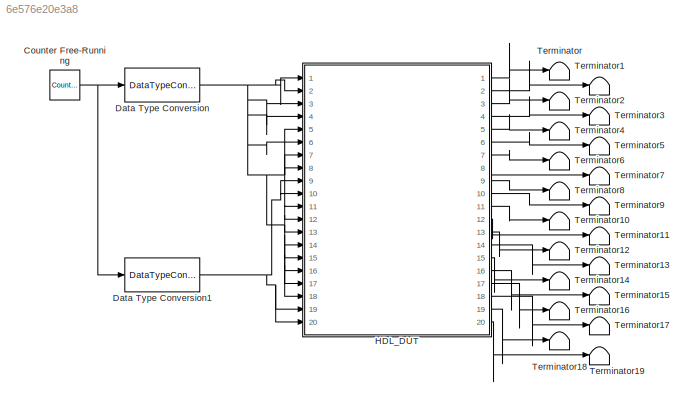
MODEL slx_6e576e20e3a8
KIND model
CONFIG AbsTol = auto
CONFIG EnableMultiTasking = off
CONFIG FixedStep = auto
CONFIG MaxStep = auto
CONFIG MinStep = auto
CONFIG RelTol = 1e-3
CONFIG SampleTimeConstraint = Unconstrained
CONFIG SolverName = FixedStepDiscrete
CONFIG StartTime = 0.0
CONFIG StopTime = 10.0
BLOCK [Reference] Counter Free-Running  REF=simulink/Sources/Counter
Free-Running
  Ports = [0, 1]
  SourceBlock = simulink/Sources/Counter\nFree-Running
  SourceProductBaseCode = SL
  SourceType = Counter Free-Running
BLOCK [DataTypeConversion] Data Type Conversion
  OutDataTypeStr = fixdt(1,128)
  OutMax = 128
  OutMin = 1
  RndMeth = Floor
  SaturateOnIntegerOverflow = off
BLOCK [DataTypeConversion] Data Type Conversion1
  OutDataTypeStr = boolean
  RndMeth = Floor
  SaturateOnIntegerOverflow = off
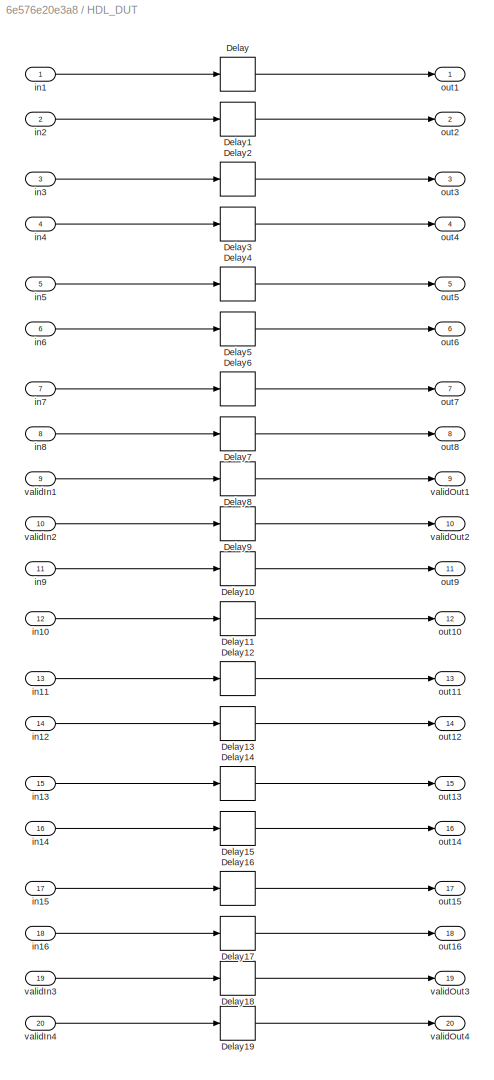
BLOCK [SubSystem] HDL_DUT
  Ports = [20, 20]
  RequestExecContextInheritance = off
  TreatAsAtomicUnit = on
BLOCK [Delay] HDL_DUT/Delay
  InputPortMap = u0
  Ports = [1, 1]
BLOCK [Delay] HDL_DUT/Delay1
  InputPortMap = u0
  Ports = [1, 1]
BLOCK [Delay] HDL_DUT/Delay10
  InputPortMap = u0
  Ports = [1, 1]
BLOCK [Delay] HDL_DUT/Delay11
  InputPortMap = u0
  Ports = [1, 1]
BLOCK [Delay] HDL_DUT/Delay12
  InputPortMap = u0
  Ports = [1, 1]
BLOCK [Delay] HDL_DUT/Delay13
  InputPortMap = u0
  Ports = [1, 1]
BLOCK [Delay] HDL_DUT/Delay14
  InputPortMap = u0
  Ports = [1, 1]
BLOCK [Delay] HDL_DUT/Delay15
  InputPortMap = u0
  Ports = [1, 1]
BLOCK [Delay] HDL_DUT/Delay16
  InputPortMap = u0
  Ports = [1, 1]
BLOCK [Delay] HDL_DUT/Delay17
  InputPortMap = u0
  Ports = [1, 1]
BLOCK [Delay] HDL_DUT/Delay18
  InputPortMap = u0
  Ports = [1, 1]
BLOCK [Delay] HDL_DUT/Delay19
  InputPortMap = u0
  Ports = [1, 1]
BLOCK [Delay] HDL_DUT/Delay2
  InputPortMap = u0
  Ports = [1, 1]
BLOCK [Delay] HDL_DUT/Delay3
  InputPortMap = u0
  Ports = [1, 1]
BLOCK [Delay] HDL_DUT/Delay4
  InputPortMap = u0
  Ports = [1, 1]
BLOCK [Delay] HDL_DUT/Delay5
  InputPortMap = u0
  Ports = [1, 1]
BLOCK [Delay] HDL_DUT/Delay6
  InputPortMap = u0
  Ports = [1, 1]
BLOCK [Delay] HDL_DUT/Delay7
  InputPortMap = u0
  Ports = [1, 1]
BLOCK [Delay] HDL_DUT/Delay8
  InputPortMap = u0
  Ports = [1, 1]
BLOCK [Delay] HDL_DUT/Delay9
  InputPortMap = u0
  Ports = [1, 1]
BLOCK [Inport] HDL_DUT/in1
BLOCK [Inport] HDL_DUT/in10
  Port = 12
BLOCK [Inport] HDL_DUT/in11
  Port = 13
BLOCK [Inport] HDL_DUT/in12
  Port = 14
BLOCK [Inport] HDL_DUT/in13
  Port = 15
BLOCK [Inport] HDL_DUT/in14
  Port = 16
BLOCK [Inport] HDL_DUT/in15
  Port = 17
BLOCK [Inport] HDL_DUT/in16
  Port = 18
BLOCK [Inport] HDL_DUT/in2
  Port = 2
BLOCK [Inport] HDL_DUT/in3
  Port = 3
BLOCK [Inport] HDL_DUT/in4
  Port = 4
BLOCK [Inport] HDL_DUT/in5
  Port = 5
BLOCK [Inport] HDL_DUT/in6
  Port = 6
BLOCK [Inport] HDL_DUT/in7
  Port = 7
BLOCK [Inport] HDL_DUT/in8
  Port = 8
BLOCK [Inport] HDL_DUT/in9
  Port = 11
BLOCK [Outport] HDL_DUT/out1
  VectorParamsAs1DForOutWhenUnconnected = off
BLOCK [Outport] HDL_DUT/out10
  Port = 12
  VectorParamsAs1DForOutWhenUnconnected = off
BLOCK [Outport] HDL_DUT/out11
  Port = 13
  VectorParamsAs1DForOutWhenUnconnected = off
BLOCK [Outport] HDL_DUT/out12
  Port = 14
  VectorParamsAs1DForOutWhenUnconnected = off
BLOCK [Outport] HDL_DUT/out13
  Port = 15
  VectorParamsAs1DForOutWhenUnconnected = off
BLOCK [Outport] HDL_DUT/out14
  Port = 16
  VectorParamsAs1DForOutWhenUnconnected = off
BLOCK [Outport] HDL_DUT/out15
  Port = 17
  VectorParamsAs1DForOutWhenUnconnected = off
BLOCK [Outport] HDL_DUT/out16
  Port = 18
  VectorParamsAs1DForOutWhenUnconnected = off
BLOCK [Outport] HDL_DUT/out2
  Port = 2
  VectorParamsAs1DForOutWhenUnconnected = off
BLOCK [Outport] HDL_DUT/out3
  Port = 3
  VectorParamsAs1DForOutWhenUnconnected = off
BLOCK [Outport] HDL_DUT/out4
  Port = 4
  VectorParamsAs1DForOutWhenUnconnected = off
BLOCK [Outport] HDL_DUT/out5
  Port = 5
  VectorParamsAs1DForOutWhenUnconnected = off
BLOCK [Outport] HDL_DUT/out6
  Port = 6
  VectorParamsAs1DForOutWhenUnconnected = off
BLOCK [Outport] HDL_DUT/out7
  Port = 7
  VectorParamsAs1DForOutWhenUnconnected = off
BLOCK [Outport] HDL_DUT/out8
  Port = 8
  VectorParamsAs1DForOutWhenUnconnected = off
BLOCK [Outport] HDL_DUT/out9
  Port = 11
  VectorParamsAs1DForOutWhenUnconnected = off
BLOCK [Inport] HDL_DUT/validIn1
  Port = 9
BLOCK [Inport] HDL_DUT/validIn2
  Port = 10
BLOCK [Inport] HDL_DUT/validIn3
  Port = 19
BLOCK [Inport] HDL_DUT/validIn4
  Port = 20
BLOCK [Outport] HDL_DUT/validOut1
  Port = 9
  VectorParamsAs1DForOutWhenUnconnected = off
BLOCK [Outport] HDL_DUT/validOut2
  Port = 10
  VectorParamsAs1DForOutWhenUnconnected = off
BLOCK [Outport] HDL_DUT/validOut3
  Port = 19
  VectorParamsAs1DForOutWhenUnconnected = off
BLOCK [Outport] HDL_DUT/validOut4
  Port = 20
  VectorParamsAs1DForOutWhenUnconnected = off
BLOCK [Terminator] Terminator
BLOCK [Terminator] Terminator1
BLOCK [Terminator] Terminator10
BLOCK [Terminator] Terminator11
BLOCK [Terminator] Terminator12
BLOCK [Terminator] Terminator13
BLOCK [Terminator] Terminator14
BLOCK [Terminator] Terminator15
BLOCK [Terminator] Terminator16
BLOCK [Terminator] Terminator17
BLOCK [Terminator] Terminator18
BLOCK [Terminator] Terminator19
BLOCK [Terminator] Terminator2
BLOCK [Terminator] Terminator3
BLOCK [Terminator] Terminator4
BLOCK [Terminator] Terminator5
BLOCK [Terminator] Terminator6
BLOCK [Terminator] Terminator7
BLOCK [Terminator] Terminator8
BLOCK [Terminator] Terminator9
NET Counter Free-Running:1 -> Data Type Conversion1:1, Data Type Conversion:1
NET Data Type Conversion1:1 -> HDL_DUT:10, HDL_DUT:19, HDL_DUT:20, HDL_DUT:9
NET Data Type Conversion:1 -> HDL_DUT:1, HDL_DUT:11, HDL_DUT:12, HDL_DUT:13, HDL_DUT:14, HDL_DUT:15, HDL_DUT:16, HDL_DUT:17, HDL_DUT:18, HDL_DUT:2, HDL_DUT:3, HDL_DUT:4, HDL_DUT:5, HDL_DUT:6, HDL_DUT:7, HDL_DUT:8
LINE HDL_DUT/Delay10:1 -> HDL_DUT/out9:1
LINE HDL_DUT/Delay11:1 -> HDL_DUT/out10:1
LINE HDL_DUT/Delay12:1 -> HDL_DUT/out11:1
LINE HDL_DUT/Delay13:1 -> HDL_DUT/out12:1
LINE HDL_DUT/Delay14:1 -> HDL_DUT/out13:1
LINE HDL_DUT/Delay15:1 -> HDL_DUT/out14:1
LINE HDL_DUT/Delay16:1 -> HDL_DUT/out15:1
LINE HDL_DUT/Delay17:1 -> HDL_DUT/out16:1
LINE HDL_DUT/Delay18:1 -> HDL_DUT/validOut3:1
LINE HDL_DUT/Delay19:1 -> HDL_DUT/validOut4:1
LINE HDL_DUT/Delay1:1 -> HDL_DUT/out2:1
LINE HDL_DUT/Delay2:1 -> HDL_DUT/out3:1
LINE HDL_DUT/Delay3:1 -> HDL_DUT/out4:1
LINE HDL_DUT/Delay4:1 -> HDL_DUT/out5:1
LINE HDL_DUT/Delay5:1 -> HDL_DUT/out6:1
LINE HDL_DUT/Delay6:1 -> HDL_DUT/out7:1
LINE HDL_DUT/Delay7:1 -> HDL_DUT/out8:1
LINE HDL_DUT/Delay8:1 -> HDL_DUT/validOut1:1
LINE HDL_DUT/Delay9:1 -> HDL_DUT/validOut2:1
LINE HDL_DUT/Delay:1 -> HDL_DUT/out1:1
LINE HDL_DUT/in10:1 -> HDL_DUT/Delay11:1
LINE HDL_DUT/in11:1 -> HDL_DUT/Delay12:1
LINE HDL_DUT/in12:1 -> HDL_DUT/Delay13:1
LINE HDL_DUT/in13:1 -> HDL_DUT/Delay14:1
LINE HDL_DUT/in14:1 -> HDL_DUT/Delay15:1
LINE HDL_DUT/in15:1 -> HDL_DUT/Delay16:1
LINE HDL_DUT/in16:1 -> HDL_DUT/Delay17:1
LINE HDL_DUT/in1:1 -> HDL_DUT/Delay:1
LINE HDL_DUT/in2:1 -> HDL_DUT/Delay1:1
LINE HDL_DUT/in3:1 -> HDL_DUT/Delay2:1
LINE HDL_DUT/in4:1 -> HDL_DUT/Delay3:1
LINE HDL_DUT/in5:1 -> HDL_DUT/Delay4:1
LINE HDL_DUT/in6:1 -> HDL_DUT/Delay5:1
LINE HDL_DUT/in7:1 -> HDL_DUT/Delay6:1
LINE HDL_DUT/in8:1 -> HDL_DUT/Delay7:1
LINE HDL_DUT/in9:1 -> HDL_DUT/Delay10:1
LINE HDL_DUT/validIn1:1 -> HDL_DUT/Delay8:1
LINE HDL_DUT/validIn2:1 -> HDL_DUT/Delay9:1
LINE HDL_DUT/validIn3:1 -> HDL_DUT/Delay18:1
LINE HDL_DUT/validIn4:1 -> HDL_DUT/Delay19:1
LINE HDL_DUT:1 -> Terminator:1
LINE HDL_DUT:10 -> Terminator9:1
LINE HDL_DUT:11 -> Terminator10:1
LINE HDL_DUT:12 -> Terminator11:1
LINE HDL_DUT:13 -> Terminator12:1
LINE HDL_DUT:14 -> Terminator13:1
LINE HDL_DUT:15 -> Terminator14:1
LINE HDL_DUT:16 -> Terminator15:1
LINE HDL_DUT:17 -> Terminator16:1
LINE HDL_DUT:18 -> Terminator17:1
LINE HDL_DUT:19 -> Terminator18:1
LINE HDL_DUT:2 -> Terminator1:1
LINE HDL_DUT:20 -> Terminator19:1
LINE HDL_DUT:3 -> Terminator2:1
LINE HDL_DUT:4 -> Terminator3:1
LINE HDL_DUT:5 -> Terminator4:1
LINE HDL_DUT:6 -> Terminator5:1
LINE HDL_DUT:7 -> Terminator6:1
LINE HDL_DUT:8 -> Terminator7:1
LINE HDL_DUT:9 -> Terminator8:1
note: NET lines group one-source signal fan-out (src -> all destinations, sorted); 1:1 wires keep LINE
